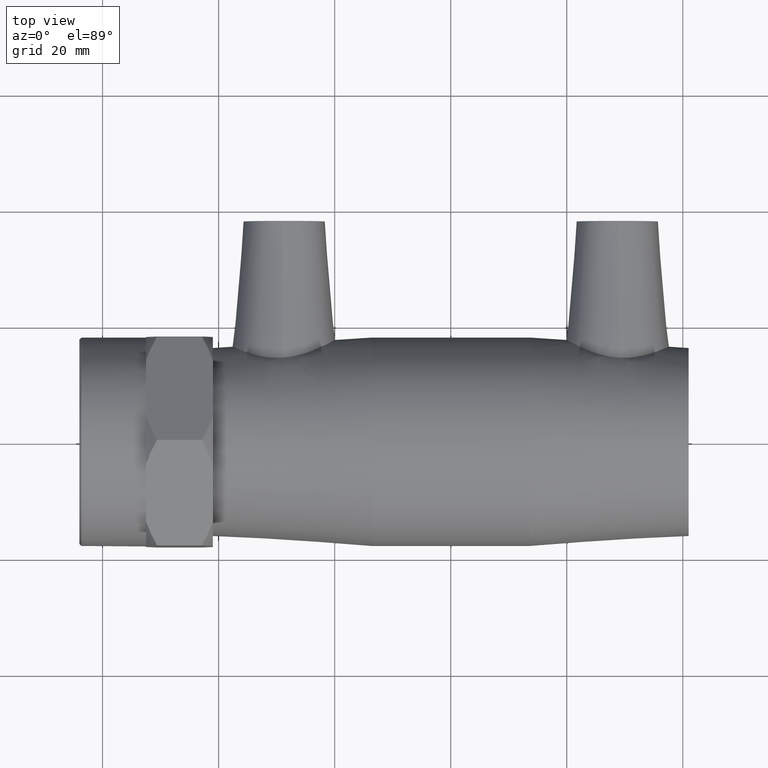
[diagram: clean part render]
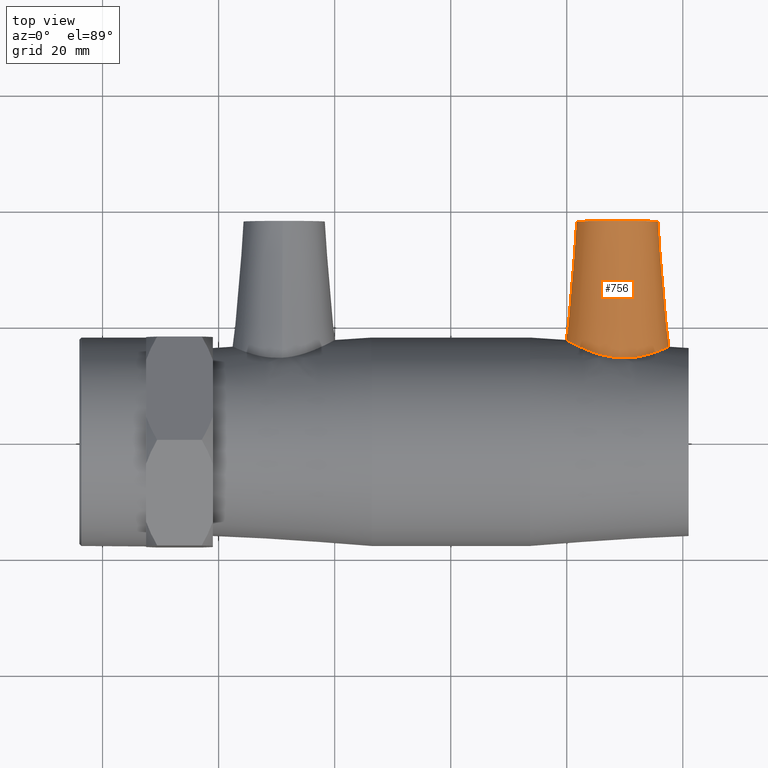
[diagram: same view with one face highlighted and labeled with its STEP entity id]
A machine part, top view. The second image highlights one B-rep face of the part: STEP entity #756.
In plain terms, the highlighted conical surface has half-angle 5 deg.
Its self-contained STEP definition (entity closure, byte-faithful):
#15=B_SPLINE_CURVE_WITH_KNOTS('',3,(#1338,#1339,#1340,#1341,#1342,#1343,
#1344,#1345,#1346,#1347,#1348,#1349,#1350,#1351,#1352,#1353,#1354,#1355,
#1356,#1357,#1358,#1359,#1360,#1361,#1362,#1363,#1364,#1365,#1366,#1367,
#1368,#1369,#1370,#1371),.UNSPECIFIED.,.T.,.F.,(4,2,2,2,2,2,2,2,2,2,2,2,
2,2,2,2,4),(0.,0.362082983987805,0.72416596797561,1.07445612585803,1.42474628374044,
1.77503644162286,2.12532659950527,2.48740958349308,2.84949256748088,3.18413855411105,
3.51878454074122,3.85467759195002,4.19057064315883,4.52646369436764,4.86235674557645,
5.19700273220661,5.53164871883678),.UNSPECIFIED.);
#141=FACE_BOUND('',#270,.T.);
#197=FACE_OUTER_BOUND('',#269,.T.);
#269=EDGE_LOOP('',(#670));
#270=EDGE_LOOP('',(#671));
#330=CIRCLE('',#852,7.);
#399=VERTEX_POINT('',#1335);
#400=VERTEX_POINT('',#1337);
#494=EDGE_CURVE('',#399,#399,#330,.T.);
#495=EDGE_CURVE('',#400,#400,#15,.T.);
#670=ORIENTED_EDGE('',*,*,#494,.F.);
#671=ORIENTED_EDGE('',*,*,#495,.F.);
#707=CONICAL_SURFACE('',#851,7.,5.);
#756=ADVANCED_FACE('',(#197,#141),#707,.T.);
#851=AXIS2_PLACEMENT_3D('',#1334,#1059,#1060);
#852=AXIS2_PLACEMENT_3D('',#1336,#1061,#1062);
#1059=DIRECTION('center_axis',(0.,-1.,0.));
#1060=DIRECTION('ref_axis',(-1.,0.,0.));
#1061=DIRECTION('center_axis',(0.,1.,0.));
#1062=DIRECTION('ref_axis',(-1.,0.,0.));
#1334=CARTESIAN_POINT('Origin',(28.7,38.,0.));
#1335=CARTESIAN_POINT('',(35.7,38.,8.57252759403147E-16));
#1336=CARTESIAN_POINT('Origin',(28.7,38.,0.));
#1337=CARTESIAN_POINT('',(29.0624403668338,14.3680176873193,9.0602840594334));
#1338=CARTESIAN_POINT('Ctrl Pts',(29.0624403668336,14.3680176873193,9.06028405943341));
#1339=CARTESIAN_POINT('Ctrl Pts',(27.8581056834815,14.4351033108961,9.10258737636529));
#1340=CARTESIAN_POINT('Ctrl Pts',(26.6086897998631,14.680924418352,8.87951051862587));
#1341=CARTESIAN_POINT('Ctrl Pts',(24.3467471666029,15.3729789242807,7.94842610876297));
#1342=CARTESIAN_POINT('Ctrl Pts',(23.3304388831687,15.8074210355104,7.24088230236481));
#1343=CARTESIAN_POINT('Ctrl Pts',(21.751864220643,16.5571936694356,5.63322573953652));
#1344=CARTESIAN_POINT('Ctrl Pts',(21.0683810193914,16.9286577487125,4.62841801538279));
#1345=CARTESIAN_POINT('Ctrl Pts',(20.1488812223354,17.446586887322,2.39642173164782));
#1346=CARTESIAN_POINT('Ctrl Pts',(19.9142317048037,17.5885749852934,1.16763385960805));
#1347=CARTESIAN_POINT('Ctrl Pts',(19.9142317048037,17.5885749852934,-1.16763385960805));
#1348=CARTESIAN_POINT('Ctrl Pts',(20.1488812223354,17.446586887322,-2.39642173164783));
#1349=CARTESIAN_POINT('Ctrl Pts',(21.0683810193914,16.9286577487125,-4.6284180153828));
#1350=CARTESIAN_POINT('Ctrl Pts',(21.751864220643,16.5571936694356,-5.63322573953652));
#1351=CARTESIAN_POINT('Ctrl Pts',(23.3304388831687,15.8074210355104,-7.24088230236481));
#1352=CARTESIAN_POINT('Ctrl Pts',(24.3467471666029,15.3729789242807,-7.94842610876297));
#1353=CARTESIAN_POINT('Ctrl Pts',(26.6086897998631,14.680924418352,-8.87951051862587));
#1354=CARTESIAN_POINT('Ctrl Pts',(27.8581056834815,14.4351033108961,-9.10258737636529));
#1355=CARTESIAN_POINT('Ctrl Pts',(30.1755160598822,14.3060155063737,-9.02118629494726));
#1356=CARTESIAN_POINT('Ctrl Pts',(31.3404341444976,14.393538133657,-8.74955398956856));
#1357=CARTESIAN_POINT('Ctrl Pts',(33.4453880144949,14.788423261003,-7.77063277499401));
#1358=CARTESIAN_POINT('Ctrl Pts',(34.3880575881184,15.0840576472611,-7.06431340389659));
#1359=CARTESIAN_POINT('Ctrl Pts',(35.8684341982819,15.6261171928127,-5.47986926733297));
#1360=CARTESIAN_POINT('Ctrl Pts',(36.5124868514296,15.9123826766357,-4.48612253063453));
#1361=CARTESIAN_POINT('Ctrl Pts',(37.3725687475525,16.3139006542937,-2.30661517359692));
#1362=CARTESIAN_POINT('Ctrl Pts',(37.5875924542781,16.4247195213036,-1.11964350402936));
#1363=CARTESIAN_POINT('Ctrl Pts',(37.5875924542781,16.4247195213036,1.11964350402936));
#1364=CARTESIAN_POINT('Ctrl Pts',(37.3725687475525,16.3139006542937,2.30661517359692));
#1365=CARTESIAN_POINT('Ctrl Pts',(36.5124868514296,15.9123826766357,4.48612253063453));
#1366=CARTESIAN_POINT('Ctrl Pts',(35.8684341982819,15.6261171928127,5.47986926733296));
#1367=CARTESIAN_POINT('Ctrl Pts',(34.3880575881184,15.0840576472611,7.06431340389659));
#1368=CARTESIAN_POINT('Ctrl Pts',(33.445388014495,14.788423261003,7.770632774994));
#1369=CARTESIAN_POINT('Ctrl Pts',(31.3404341444976,14.393538133657,8.74955398956856));
#1370=CARTESIAN_POINT('Ctrl Pts',(30.1755160598822,14.3060155063737,9.02118629494725));
#1371=CARTESIAN_POINT('Ctrl Pts',(29.0624403668336,14.3680176873193,9.06028405943341));